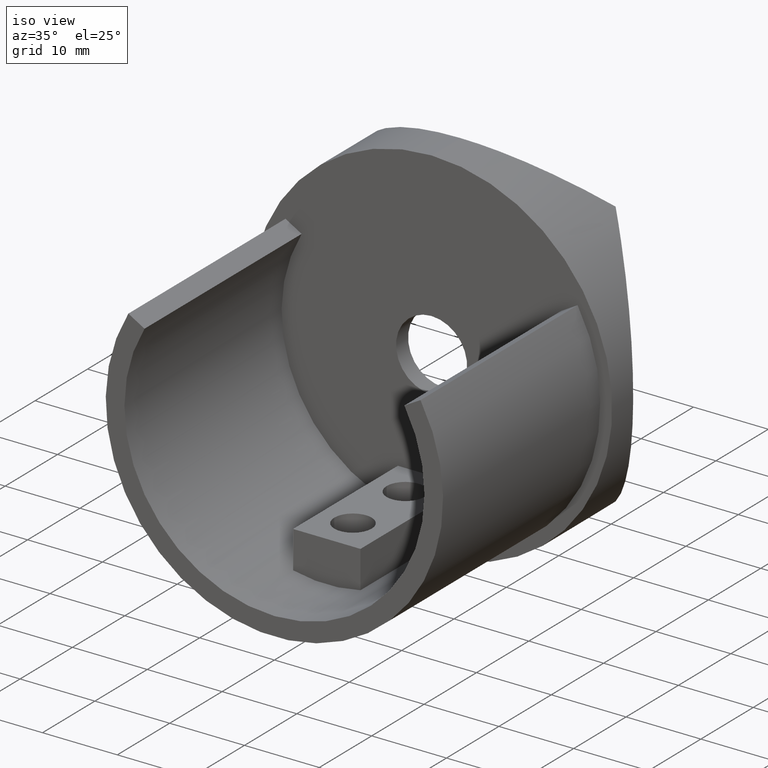
[diagram: clean part render]
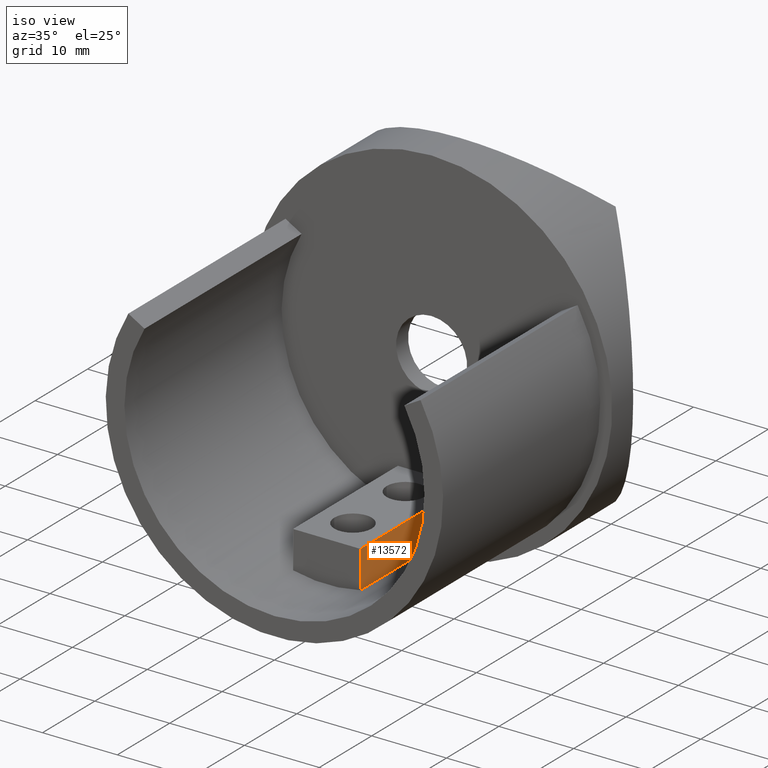
[diagram: same view with one face highlighted and labeled with its STEP entity id]
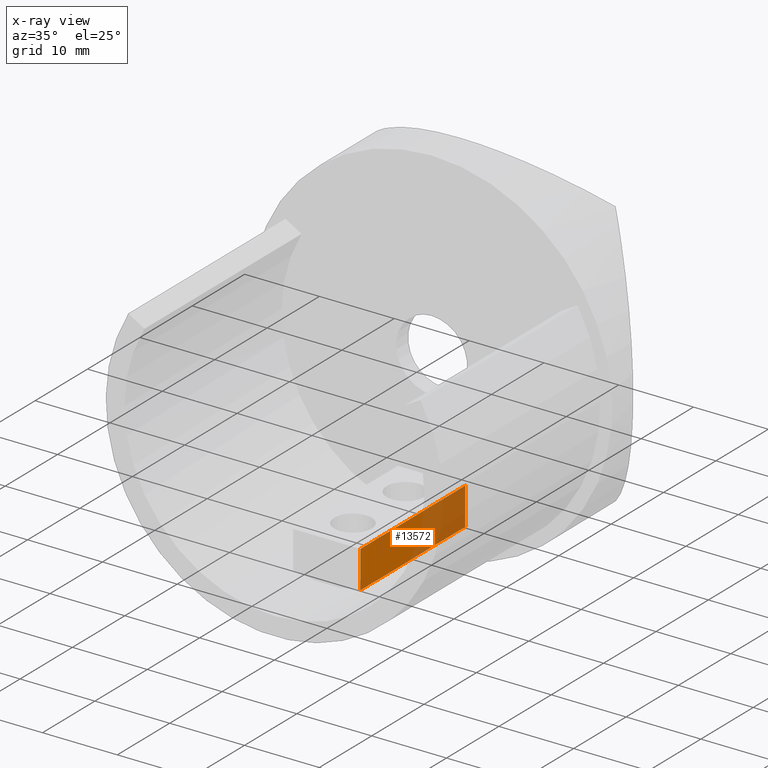
[diagram: x-ray of the same camera — body ghosted, the highlighted face saturated]
A machine part, iso view. The second image highlights one B-rep face of the part: STEP entity #13572.
The next image is the same camera in x-ray: the body ghosted, the highlighted face saturated — about 45% of this face is hidden behind the body in this view.
In plain terms, the highlighted planar face has unit normal (-1, 0, -0).
Its self-contained STEP definition (entity closure, byte-faithful):
#225 = VECTOR ( 'NONE', #4979, 1000.000000000000000 ) ;
#246 = ORIENTED_EDGE ( 'NONE', *, *, #6518, .T. ) ;
#254 = CARTESIAN_POINT ( 'NONE',  ( 4.500000000000000000, -20.00000000000000000, -14.55000000000001300 ) ) ;
#1358 = CARTESIAN_POINT ( 'NONE',  ( 4.500000000000000000, -20.00000000000000000, -19.53848765897710700 ) ) ;
#1938 = CARTESIAN_POINT ( 'NONE',  ( 4.500000000000000000, -30.00000000000000000, -19.53848765897710700 ) ) ;
#2510 = DIRECTION ( 'NONE',  ( -0.0000000000000000000, -0.0000000000000000000, 1.000000000000000000 ) ) ;
#2675 = FACE_OUTER_BOUND ( 'NONE', #7416, .T. ) ;
#3163 = AXIS2_PLACEMENT_3D ( 'NONE', #11811, #10593, #6423 ) ;
#3172 = CARTESIAN_POINT ( 'NONE',  ( 4.500000000000000000, -20.00000000000000000, -14.55000000000001300 ) ) ;
#3278 = VECTOR ( 'NONE', #3531, 1000.000000000000000 ) ;
#3531 = DIRECTION ( 'NONE',  ( -0.0000000000000000000, 1.000000000000000000, -0.0000000000000000000 ) ) ;
#3801 = VECTOR ( 'NONE', #13910, 1000.000000000000000 ) ;
#4012 = EDGE_CURVE ( 'NONE', #8675, #11641, #11195, .T. ) ;
#4267 = LINE ( 'NONE', #254, #9564 ) ;
#4979 = DIRECTION ( 'NONE',  ( -0.0000000000000000000, -0.0000000000000000000, 1.000000000000000000 ) ) ;
#6423 = DIRECTION ( 'NONE',  ( -0.0000000000000000000, 0.0000000000000000000, 1.000000000000000000 ) ) ;
#6469 = CARTESIAN_POINT ( 'NONE',  ( 4.500000000000000000, 0.0000000000000000000, -14.55000000000001300 ) ) ;
#6518 = EDGE_CURVE ( 'NONE', #9832, #8675, #13013, .T. ) ;
#6615 = CARTESIAN_POINT ( 'NONE',  ( 4.500000000000000000, -20.00000000000000000, -14.55000000000001300 ) ) ;
#7175 = ORIENTED_EDGE ( 'NONE', *, *, #4012, .T. ) ;
#7414 = PLANE ( 'NONE',  #3163 ) ;
#7416 = EDGE_LOOP ( 'NONE', ( #11765, #246, #7175, #8543 ) ) ;
#8321 = EDGE_CURVE ( 'NONE', #9574, #11641, #10277, .T. ) ;
#8543 = ORIENTED_EDGE ( 'NONE', *, *, #8321, .F. ) ;
#8675 = VERTEX_POINT ( 'NONE', #13993 ) ;
#9201 = EDGE_CURVE ( 'NONE', #9832, #9574, #4267, .T. ) ;
#9564 = VECTOR ( 'NONE', #2510, 1000.000000000000000 ) ;
#9574 = VERTEX_POINT ( 'NONE', #3172 ) ;
#9832 = VERTEX_POINT ( 'NONE', #1358 ) ;
#10277 = LINE ( 'NONE', #6615, #3278 ) ;
#10593 = DIRECTION ( 'NONE',  ( -1.000000000000000000, 0.0000000000000000000, -0.0000000000000000000 ) ) ;
#11195 = LINE ( 'NONE', #13847, #225 ) ;
#11641 = VERTEX_POINT ( 'NONE', #6469 ) ;
#11765 = ORIENTED_EDGE ( 'NONE', *, *, #9201, .F. ) ;
#11811 = CARTESIAN_POINT ( 'NONE',  ( 4.500000000000000000, -20.00000000000000000, -14.55000000000001300 ) ) ;
#13013 = LINE ( 'NONE', #1938, #3801 ) ;
#13572 = ADVANCED_FACE ( 'NONE', ( #2675 ), #7414, .F. ) ;
#13847 = CARTESIAN_POINT ( 'NONE',  ( 4.500000000000000000, 0.0000000000000000000, -14.55000000000001300 ) ) ;
#13910 = DIRECTION ( 'NONE',  ( -0.0000000000000000000, 1.000000000000000000, -0.0000000000000000000 ) ) ;
#13993 = CARTESIAN_POINT ( 'NONE',  ( 4.500000000000000000, 0.0000000000000000000, -19.53848765897710700 ) ) ;